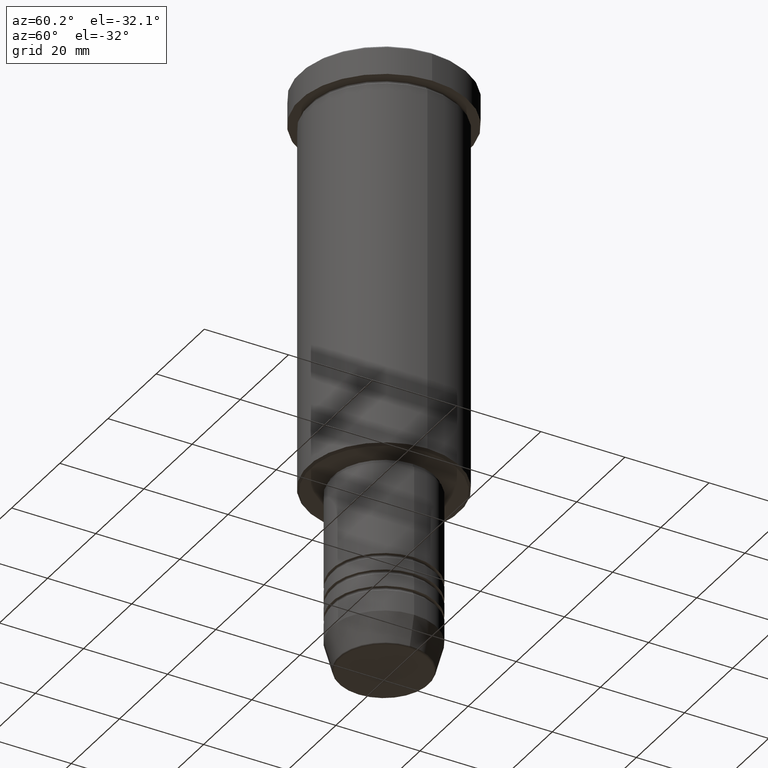
[diagram: clean part render]
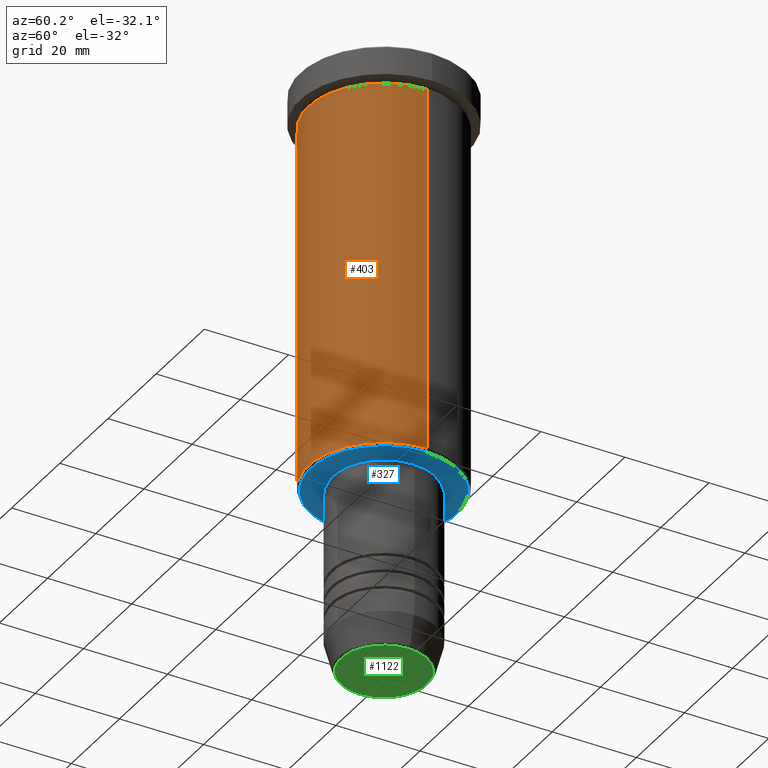
[diagram: same view with three faces highlighted in distinct colors, each labeled with its STEP entity id]
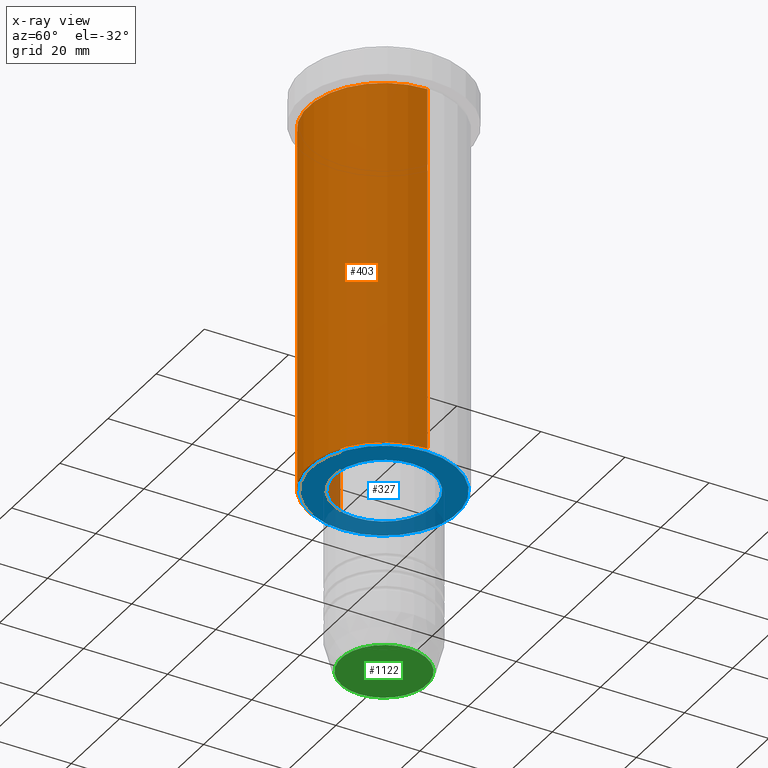
[diagram: x-ray of the same camera — body ghosted, the three highlighted faces saturated]
A machine part, auxiliary view with three faces highlighted in distinct colors.
The next image is the same camera in x-ray (body ghosted, the three faces saturated) — at least one of them is partly hidden behind the body in this view.
Their STEP definitions:

[orange] entity #403 — the highlighted cylindrical surface (partial cylindrical patch) has radius 18 mm, axis along (-0, -0, 1).
#30 = CARTESIAN_POINT ( 'NONE',  ( -18.00000000000000000, 2.204364238465235428E-15, -95.50000000000001421 ) ) ;
#34 = CARTESIAN_POINT ( 'NONE',  ( 18.00000000000000000, 0.000000000000000000, 0.000000000000000000 ) ) ;
#60 = CYLINDRICAL_SURFACE ( 'NONE', #551, 18.00000000000000000 ) ;
#86 = CIRCLE ( 'NONE', #782, 18.00000000000000000 ) ;
#129 = CIRCLE ( 'NONE', #1172, 18.00000000000000000 ) ;
#148 = DIRECTION ( 'NONE',  ( 1.000000000000000000, 0.000000000000000000, 0.000000000000000000 ) ) ;
#175 = VERTEX_POINT ( 'NONE', #30 ) ;
#230 = EDGE_LOOP ( 'NONE', ( #623, #577, #483, #771 ) ) ;
#250 = CARTESIAN_POINT ( 'NONE',  ( 0.000000000000000000, 0.000000000000000000, -7.999999999999996447 ) ) ;
#320 = EDGE_CURVE ( 'NONE', #175, #448, #1024, .T. ) ;
#337 = EDGE_CURVE ( 'NONE', #647, #1046, #1044, .T. ) ;
#367 = CARTESIAN_POINT ( 'NONE',  ( 18.00000000000000000, 0.000000000000000000, -7.999999999999996447 ) ) ;
#395 = CARTESIAN_POINT ( 'NONE',  ( 18.00000000000000000, 0.000000000000000000, -95.50000000000001421 ) ) ;
#403 = ADVANCED_FACE ( 'NONE', ( #612 ), #60, .T. ) ;
#448 = VERTEX_POINT ( 'NONE', #964 ) ;
#483 = ORIENTED_EDGE ( 'NONE', *, *, #337, .T. ) ;
#503 = DIRECTION ( 'NONE',  ( 1.000000000000000000, 0.000000000000000000, 0.000000000000000000 ) ) ;
#551 = AXIS2_PLACEMENT_3D ( 'NONE', #681, #1052, #503 ) ;
#577 = ORIENTED_EDGE ( 'NONE', *, *, #627, .T. ) ;
#612 = FACE_OUTER_BOUND ( 'NONE', #230, .T. ) ;
#623 = ORIENTED_EDGE ( 'NONE', *, *, #320, .F. ) ;
#627 = EDGE_CURVE ( 'NONE', #175, #647, #129, .T. ) ;
#647 = VERTEX_POINT ( 'NONE', #395 ) ;
#681 = CARTESIAN_POINT ( 'NONE',  ( 0.000000000000000000, 0.000000000000000000, 0.000000000000000000 ) ) ;
#742 = DIRECTION ( 'NONE',  ( -1.000000000000000000, 0.000000000000000000, 0.000000000000000000 ) ) ;
#771 = ORIENTED_EDGE ( 'NONE', *, *, #913, .F. ) ;
#782 = AXIS2_PLACEMENT_3D ( 'NONE', #250, #955, #148 ) ;
#861 = CARTESIAN_POINT ( 'NONE',  ( -18.00000000000000000, 2.204364238465235428E-15, 0.000000000000000000 ) ) ;
#874 = DIRECTION ( 'NONE',  ( -0.000000000000000000, -0.000000000000000000, 1.000000000000000000 ) ) ;
#913 = EDGE_CURVE ( 'NONE', #448, #1046, #86, .T. ) ;
#955 = DIRECTION ( 'NONE',  ( -0.000000000000000000, -0.000000000000000000, 1.000000000000000000 ) ) ;
#964 = CARTESIAN_POINT ( 'NONE',  ( -18.00000000000000000, 2.204364238465235428E-15, -7.999999999999996447 ) ) ;
#978 = VECTOR ( 'NONE', #1151, 1000.000000000000000 ) ;
#1009 = DIRECTION ( 'NONE',  ( -0.000000000000000000, -0.000000000000000000, 1.000000000000000000 ) ) ;
#1018 = VECTOR ( 'NONE', #874, 1000.000000000000000 ) ;
#1024 = LINE ( 'NONE', #861, #1018 ) ;
#1029 = CARTESIAN_POINT ( 'NONE',  ( 0.000000000000000000, 0.000000000000000000, -95.50000000000001421 ) ) ;
#1044 = LINE ( 'NONE', #34, #978 ) ;
#1046 = VERTEX_POINT ( 'NONE', #367 ) ;
#1052 = DIRECTION ( 'NONE',  ( -0.000000000000000000, -0.000000000000000000, 1.000000000000000000 ) ) ;
#1151 = DIRECTION ( 'NONE',  ( -0.000000000000000000, -0.000000000000000000, 1.000000000000000000 ) ) ;
#1172 = AXIS2_PLACEMENT_3D ( 'NONE', #1029, #1009, #742 ) ;

[blue] entity #327 — the highlighted planar face has unit normal (0, 0, -1).
#35 = EDGE_LOOP ( 'NONE', ( #424, #1121 ) ) ;
#97 = DIRECTION ( 'NONE',  ( -1.000000000000000000, 0.000000000000000000, 0.000000000000000000 ) ) ;
#168 = AXIS2_PLACEMENT_3D ( 'NONE', #906, #639, #363 ) ;
#169 = DIRECTION ( 'NONE',  ( -1.000000000000000000, 0.000000000000000000, 0.000000000000000000 ) ) ;
#186 = EDGE_CURVE ( 'NONE', #1034, #1027, #188, .T. ) ;
#188 = CIRCLE ( 'NONE', #778, 12.00000000000000000 ) ;
#226 = EDGE_LOOP ( 'NONE', ( #1084, #1153 ) ) ;
#234 = CARTESIAN_POINT ( 'NONE',  ( -17.50000000000000000, 2.173748068486551641E-15, -96.00000000000000000 ) ) ;
#274 = CARTESIAN_POINT ( 'NONE',  ( -12.00000000000000000, 1.469576158976823947E-15, -96.00000000000000000 ) ) ;
#324 = DIRECTION ( 'NONE',  ( -0.000000000000000000, -0.000000000000000000, 1.000000000000000000 ) ) ;
#327 = ADVANCED_FACE ( 'NONE', ( #339, #687 ), #606, .T. ) ;
#330 = CARTESIAN_POINT ( 'NONE',  ( 0.000000000000000000, 18.00000000000000000, -96.00000000000000000 ) ) ;
#339 = FACE_OUTER_BOUND ( 'NONE', #35, .T. ) ;
#348 = DIRECTION ( 'NONE',  ( -1.000000000000000000, 0.000000000000000000, -0.000000000000000000 ) ) ;
#353 = CIRCLE ( 'NONE', #574, 17.50000000000000000 ) ;
#362 = CARTESIAN_POINT ( 'NONE',  ( 12.00000000000000000, 0.000000000000000000, -96.00000000000000000 ) ) ;
#363 = DIRECTION ( 'NONE',  ( 1.000000000000000000, 0.000000000000000000, 0.000000000000000000 ) ) ;
#379 = CARTESIAN_POINT ( 'NONE',  ( 0.000000000000000000, 0.000000000000000000, -96.00000000000000000 ) ) ;
#421 = CIRCLE ( 'NONE', #980, 17.50000000000000000 ) ;
#424 = ORIENTED_EDGE ( 'NONE', *, *, #656, .T. ) ;
#494 = CIRCLE ( 'NONE', #168, 12.00000000000000000 ) ;
#499 = EDGE_CURVE ( 'NONE', #1027, #1034, #494, .T. ) ;
#527 = DIRECTION ( 'NONE',  ( 0.000000000000000000, 0.000000000000000000, -1.000000000000000000 ) ) ;
#574 = AXIS2_PLACEMENT_3D ( 'NONE', #379, #754, #97 ) ;
#606 = PLANE ( 'NONE',  #759 ) ;
#639 = DIRECTION ( 'NONE',  ( -0.000000000000000000, -0.000000000000000000, 1.000000000000000000 ) ) ;
#656 = EDGE_CURVE ( 'NONE', #677, #863, #353, .T. ) ;
#673 = CARTESIAN_POINT ( 'NONE',  ( 0.000000000000000000, 0.000000000000000000, -96.00000000000000000 ) ) ;
#677 = VERTEX_POINT ( 'NONE', #1105 ) ;
#687 = FACE_BOUND ( 'NONE', #226, .T. ) ;
#711 = CARTESIAN_POINT ( 'NONE',  ( 0.000000000000000000, 0.000000000000000000, -96.00000000000000000 ) ) ;
#754 = DIRECTION ( 'NONE',  ( 0.000000000000000000, 0.000000000000000000, -1.000000000000000000 ) ) ;
#759 = AXIS2_PLACEMENT_3D ( 'NONE', #330, #868, #348 ) ;
#778 = AXIS2_PLACEMENT_3D ( 'NONE', #673, #324, #1005 ) ;
#863 = VERTEX_POINT ( 'NONE', #234 ) ;
#868 = DIRECTION ( 'NONE',  ( 0.000000000000000000, 0.000000000000000000, -1.000000000000000000 ) ) ;
#906 = CARTESIAN_POINT ( 'NONE',  ( 0.000000000000000000, 0.000000000000000000, -96.00000000000000000 ) ) ;
#972 = EDGE_CURVE ( 'NONE', #863, #677, #421, .T. ) ;
#980 = AXIS2_PLACEMENT_3D ( 'NONE', #711, #527, #169 ) ;
#1005 = DIRECTION ( 'NONE',  ( 1.000000000000000000, 0.000000000000000000, 0.000000000000000000 ) ) ;
#1027 = VERTEX_POINT ( 'NONE', #362 ) ;
#1034 = VERTEX_POINT ( 'NONE', #274 ) ;
#1084 = ORIENTED_EDGE ( 'NONE', *, *, #499, .T. ) ;
#1105 = CARTESIAN_POINT ( 'NONE',  ( 17.50000000000000000, 0.000000000000000000, -96.00000000000000000 ) ) ;
#1121 = ORIENTED_EDGE ( 'NONE', *, *, #972, .T. ) ;
#1153 = ORIENTED_EDGE ( 'NONE', *, *, #186, .T. ) ;

[green] entity #1122 — the highlighted planar face has unit normal (0, -0, 1).
#19 = DIRECTION ( 'NONE',  ( 0.000000000000000000, -0.000000000000000000, 1.000000000000000000 ) ) ;
#39 = CARTESIAN_POINT ( 'NONE',  ( 0.000000000000000000, 0.000000000000000000, -140.0000000000000000 ) ) ;
#43 = EDGE_CURVE ( 'NONE', #947, #582, #331, .T. ) ;
#294 = AXIS2_PLACEMENT_3D ( 'NONE', #39, #702, #611 ) ;
#299 = EDGE_LOOP ( 'NONE', ( #500, #1165 ) ) ;
#331 = CIRCLE ( 'NONE', #659, 10.24069215899265828 ) ;
#458 = CARTESIAN_POINT ( 'NONE',  ( -10.24069215899265828, 1.283696036640842178E-15, -140.0000000000000000 ) ) ;
#500 = ORIENTED_EDGE ( 'NONE', *, *, #43, .T. ) ;
#564 = PLANE ( 'NONE',  #631 ) ;
#582 = VERTEX_POINT ( 'NONE', #458 ) ;
#611 = DIRECTION ( 'NONE',  ( 1.000000000000000000, 0.000000000000000000, 0.000000000000000000 ) ) ;
#631 = AXIS2_PLACEMENT_3D ( 'NONE', #832, #19, #1085 ) ;
#659 = AXIS2_PLACEMENT_3D ( 'NONE', #974, #987, #1060 ) ;
#702 = DIRECTION ( 'NONE',  ( 0.000000000000000000, 0.000000000000000000, -1.000000000000000000 ) ) ;
#757 = FACE_OUTER_BOUND ( 'NONE', #299, .T. ) ;
#832 = CARTESIAN_POINT ( 'NONE',  ( 0.000000000000000000, 0.000000000000000000, -140.0000000000000000 ) ) ;
#841 = EDGE_CURVE ( 'NONE', #582, #947, #1134, .T. ) ;
#882 = CARTESIAN_POINT ( 'NONE',  ( 10.24069215899265828, 0.000000000000000000, -140.0000000000000000 ) ) ;
#947 = VERTEX_POINT ( 'NONE', #882 ) ;
#974 = CARTESIAN_POINT ( 'NONE',  ( 0.000000000000000000, 0.000000000000000000, -140.0000000000000000 ) ) ;
#987 = DIRECTION ( 'NONE',  ( 0.000000000000000000, 0.000000000000000000, -1.000000000000000000 ) ) ;
#1060 = DIRECTION ( 'NONE',  ( 1.000000000000000000, 0.000000000000000000, 0.000000000000000000 ) ) ;
#1085 = DIRECTION ( 'NONE',  ( 1.000000000000000000, 0.000000000000000000, 0.000000000000000000 ) ) ;
#1122 = ADVANCED_FACE ( 'NONE', ( #757 ), #564, .F. ) ;
#1134 = CIRCLE ( 'NONE', #294, 10.24069215899265828 ) ;
#1165 = ORIENTED_EDGE ( 'NONE', *, *, #841, .T. ) ;